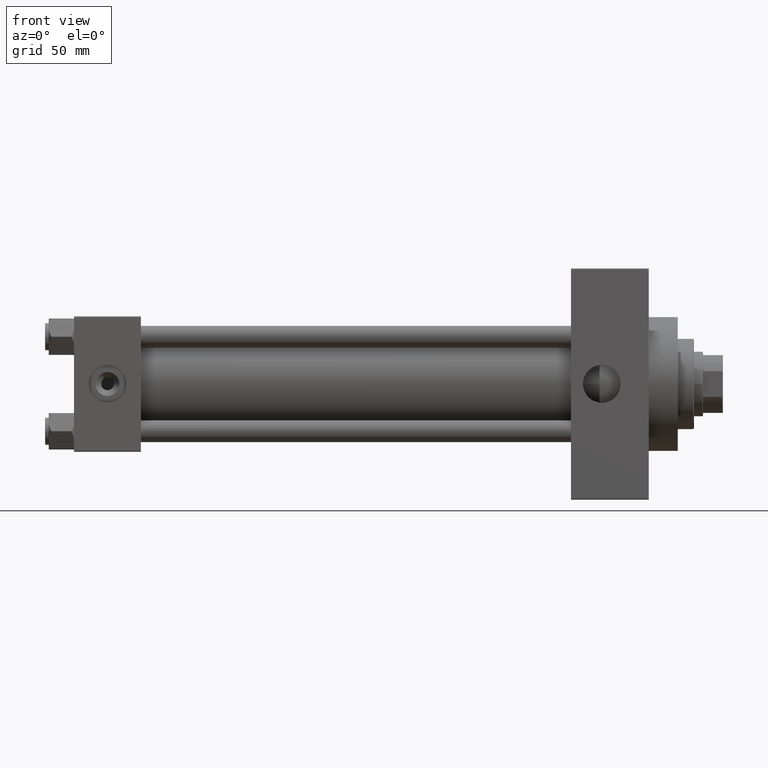
[diagram: clean part render]
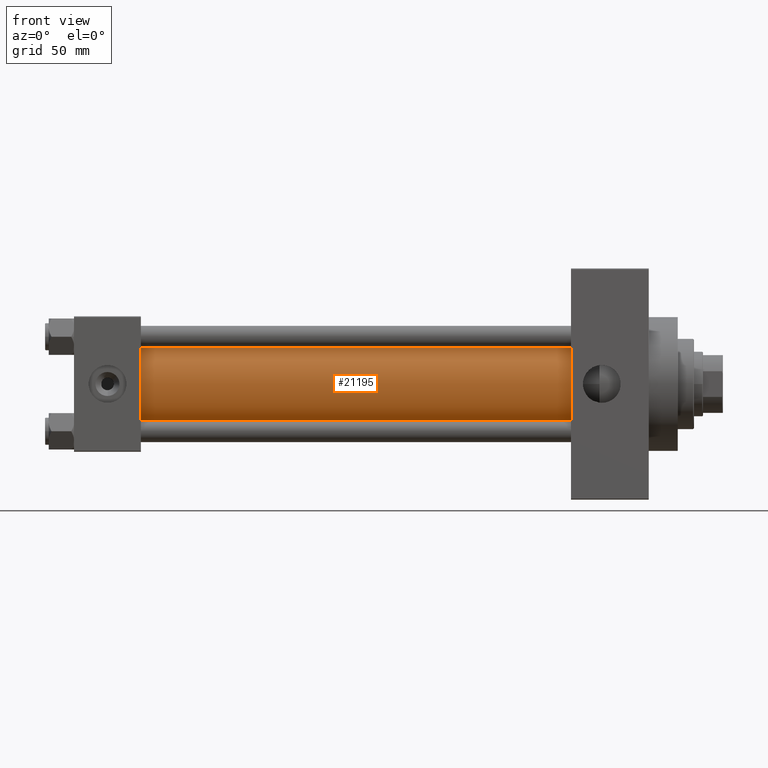
[diagram: same view with one face highlighted and labeled with its STEP entity id]
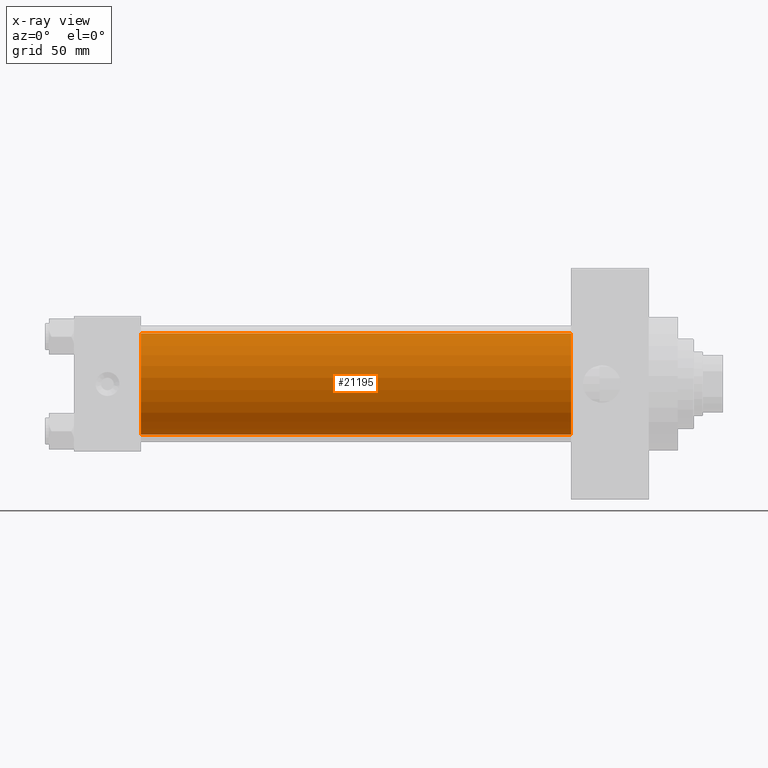
[diagram: x-ray of the same camera — body ghosted, the highlighted face saturated]
A machine part, front view. The second image highlights one B-rep face of the part: STEP entity #21195.
The next image is the same camera in x-ray: the body ghosted, the highlighted face saturated — about 0% of this face is hidden behind the body in this view.
In plain terms, the highlighted cylindrical surface (partial cylindrical patch) has radius 28 mm, axis along (-1, -0, -0).
Its self-contained STEP definition (entity closure, byte-faithful):
#714 = CYLINDRICAL_SURFACE ( 'NONE', #43549, 28.00000000000000000 ) ;
#4265 = DIRECTION ( 'NONE',  ( -1.000000000000000000, -0.000000000000000000, -0.000000000000000000 ) ) ;
#5575 = DIRECTION ( 'NONE',  ( 0.000000000000000000, 0.000000000000000000, 1.000000000000000000 ) ) ;
#7024 = DIRECTION ( 'NONE',  ( 1.000000000000000000, 0.000000000000000000, 0.000000000000000000 ) ) ;
#10292 = DIRECTION ( 'NONE',  ( 0.000000000000000000, 0.000000000000000000, -1.000000000000000000 ) ) ;
#10346 = VERTEX_POINT ( 'NONE', #48152 ) ;
#14989 = ORIENTED_EDGE ( 'NONE', *, *, #45628, .F. ) ;
#15949 = ORIENTED_EDGE ( 'NONE', *, *, #21425, .T. ) ;
#17277 = DIRECTION ( 'NONE',  ( 1.000000000000000000, -0.000000000000000000, 0.000000000000000000 ) ) ;
#17318 = VERTEX_POINT ( 'NONE', #39732 ) ;
#18992 = VECTOR ( 'NONE', #4265, 1000.000000000000000 ) ;
#20588 = EDGE_CURVE ( 'NONE', #33794, #10346, #26035, .T. ) ;
#21195 = ADVANCED_FACE ( 'NONE', ( #30117 ), #714, .T. ) ;
#21425 = EDGE_CURVE ( 'NONE', #10346, #17318, #33965, .T. ) ;
#22219 = VERTEX_POINT ( 'NONE', #28616 ) ;
#23221 = CARTESIAN_POINT ( 'NONE',  ( 274.9999999999999432, 8.269258236473784371E-16, -28.00000000000000000 ) ) ;
#24138 = CARTESIAN_POINT ( 'NONE',  ( 274.9999999999999432, -2.602085213965210642E-15, 28.00000000000000000 ) ) ;
#25875 = ORIENTED_EDGE ( 'NONE', *, *, #20588, .T. ) ;
#26035 = LINE ( 'NONE', #26276, #28403 ) ;
#26276 = CARTESIAN_POINT ( 'NONE',  ( 274.9999999999999432, -2.602085213965210642E-15, 28.00000000000000000 ) ) ;
#28403 = VECTOR ( 'NONE', #33243, 1000.000000000000000 ) ;
#28616 = CARTESIAN_POINT ( 'NONE',  ( 274.9999999999999432, 8.269258236473784371E-16, -28.00000000000000000 ) ) ;
#28951 = ORIENTED_EDGE ( 'NONE', *, *, #46440, .F. ) ;
#30117 = FACE_OUTER_BOUND ( 'NONE', #37252, .T. ) ;
#31349 = DIRECTION ( 'NONE',  ( -1.000000000000000000, -0.000000000000000000, -0.000000000000000000 ) ) ;
#31604 = DIRECTION ( 'NONE',  ( 0.000000000000000000, 0.000000000000000000, 1.000000000000000000 ) ) ;
#33243 = DIRECTION ( 'NONE',  ( -1.000000000000000000, -0.000000000000000000, -0.000000000000000000 ) ) ;
#33794 = VERTEX_POINT ( 'NONE', #24138 ) ;
#33965 = CIRCLE ( 'NONE', #42732, 28.00000000000000000 ) ;
#37252 = EDGE_LOOP ( 'NONE', ( #28951, #14989, #25875, #15949 ) ) ;
#37268 = CIRCLE ( 'NONE', #38870, 28.00000000000000000 ) ;
#38870 = AXIS2_PLACEMENT_3D ( 'NONE', #44414, #7024, #10292 ) ;
#39732 = CARTESIAN_POINT ( 'NONE',  ( 37.00000000000000711, 8.269258236473784371E-16, -28.00000000000000000 ) ) ;
#42732 = AXIS2_PLACEMENT_3D ( 'NONE', #47913, #17277, #5575 ) ;
#42899 = LINE ( 'NONE', #23221, #18992 ) ;
#43071 = CARTESIAN_POINT ( 'NONE',  ( 274.9999999999999432, -2.602085213965210642E-15, 0.000000000000000000 ) ) ;
#43549 = AXIS2_PLACEMENT_3D ( 'NONE', #43071, #31349, #31604 ) ;
#44414 = CARTESIAN_POINT ( 'NONE',  ( 274.9999999999999432, -2.602085213965210642E-15, 0.000000000000000000 ) ) ;
#45628 = EDGE_CURVE ( 'NONE', #33794, #22219, #37268, .T. ) ;
#46440 = EDGE_CURVE ( 'NONE', #22219, #17318, #42899, .T. ) ;
#47913 = CARTESIAN_POINT ( 'NONE',  ( 37.00000000000000711, -2.602085213965210642E-15, 0.000000000000000000 ) ) ;
#48152 = CARTESIAN_POINT ( 'NONE',  ( 37.00000000000000711, -2.602085213965210642E-15, 28.00000000000000000 ) ) ;